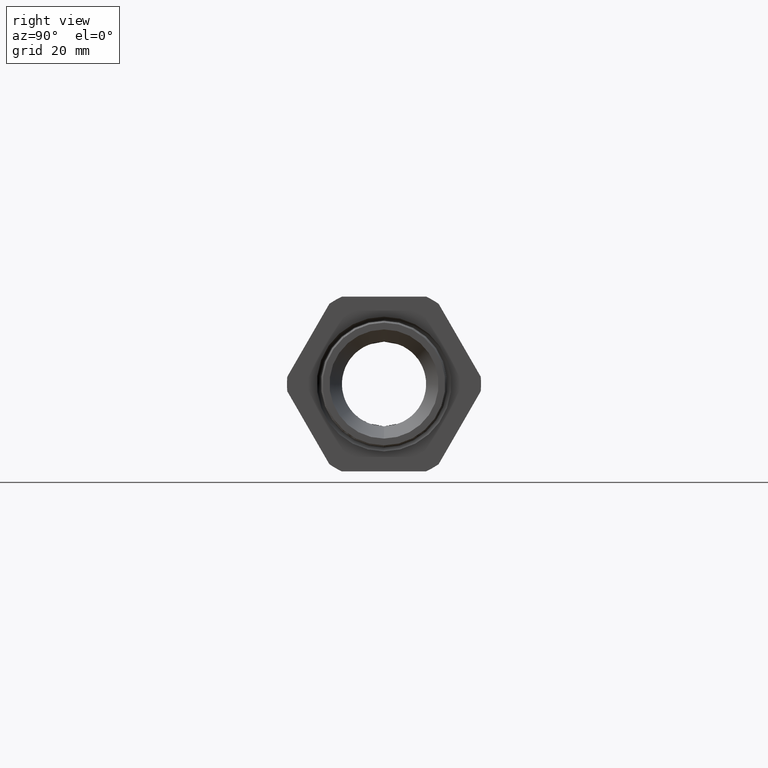
[diagram: clean part render]
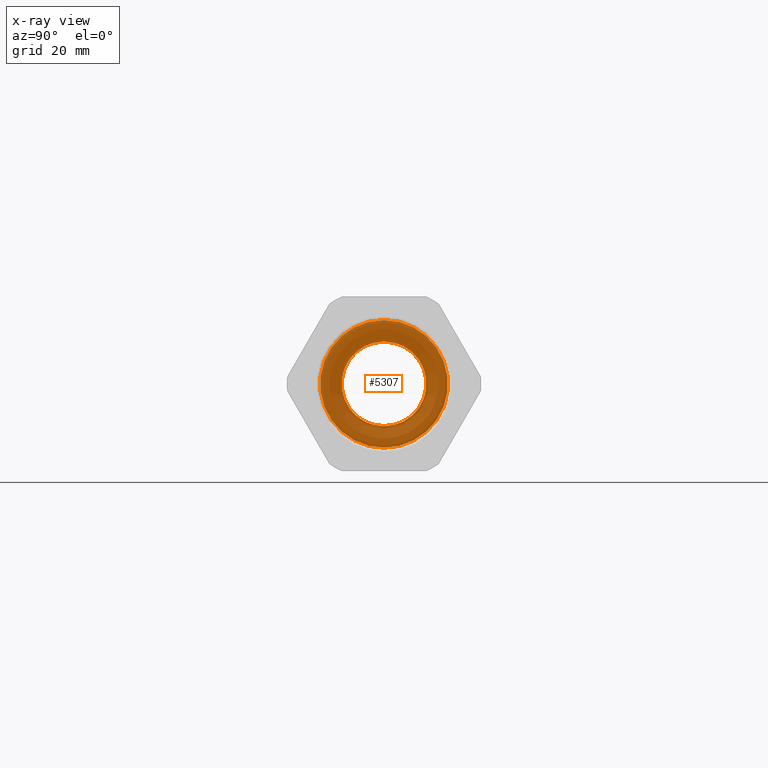
[diagram: x-ray — body ghosted, one internal face saturated and labeled with its STEP entity id]
A machine part, right view, then the same camera in x-ray: the body is ghosted and one INTERNAL B-rep face — a face not visible from any outside direction — is saturated and labeled: STEP entity #5307.
In plain terms, the highlighted planar face has unit normal (1, 0, 0).
Its self-contained STEP definition (entity closure, byte-faithful):
#1501 = DIRECTION ( 'NONE',  ( 0.0000000000000000000, 0.0000000000000000000, -1.000000000000000000 ) ) ;
#1502 = DIRECTION ( 'NONE',  ( 1.000000000000000000, 0.0000000000000000000, 0.0000000000000000000 ) ) ;
#1503 = CARTESIAN_POINT ( 'NONE',  ( -1.370551181102362300, 0.4744999999999999800, 0.0000000000000000000 ) ) ;
#1504 = AXIS2_PLACEMENT_3D ( 'NONE', #1503, #1502, #1501 ) ;
#1505 = PLANE ( 'NONE',  #1504 ) ;
#1506 = FACE_BOUND ( 'NONE', #5310, .T. ) ;
#1507 = FACE_OUTER_BOUND ( 'NONE', #5308, .T. ) ;
#1512 = DIRECTION ( 'NONE',  ( 0.0000000000000000000, 0.0000000000000000000, -1.000000000000000000 ) ) ;
#1513 = DIRECTION ( 'NONE',  ( 1.000000000000000000, 0.0000000000000000000, 0.0000000000000000000 ) ) ;
#1514 = CARTESIAN_POINT ( 'NONE',  ( -1.370551181102362100, 0.0000000000000000000, 0.0000000000000000000 ) ) ;
#1515 = AXIS2_PLACEMENT_3D ( 'NONE', #1514, #1513, #1512 ) ;
#1516 = CIRCLE ( 'NONE', #1515, 0.4744999999999999800 ) ;
#5304 = EDGE_CURVE ( 'NONE', #5615, #5614, #1516, .T. ) ;
#5307 = ADVANCED_FACE ( 'NONE', ( #1507, #1506 ), #1505, .T. ) ;
#5308 = EDGE_LOOP ( 'NONE', ( #5309, #5697 ) ) ;
#5309 = ORIENTED_EDGE ( 'NONE', *, *, #5304, .T. ) ;
#5310 = EDGE_LOOP ( 'NONE', ( #5888, #5890 ) ) ;
#5598 = VERTEX_POINT ( 'NONE', #12733 ) ;
#5614 = VERTEX_POINT ( 'NONE', #12763 ) ;
#5615 = VERTEX_POINT ( 'NONE', #12762 ) ;
#5697 = ORIENTED_EDGE ( 'NONE', *, *, #5887, .T. ) ;
#5741 = VERTEX_POINT ( 'NONE', #12954 ) ;
#5743 = EDGE_CURVE ( 'NONE', #5741, #5598, #12953, .T. ) ;
#5887 = EDGE_CURVE ( 'NONE', #5614, #5615, #13163, .T. ) ;
#5888 = ORIENTED_EDGE ( 'NONE', *, *, #5889, .F. ) ;
#5889 = EDGE_CURVE ( 'NONE', #5598, #5741, #13157, .T. ) ;
#5890 = ORIENTED_EDGE ( 'NONE', *, *, #5743, .F. ) ;
#12733 = CARTESIAN_POINT ( 'NONE',  ( -1.370551181102362500, 0.0000000000000000000, -0.3150000000000000000 ) ) ;
#12762 = CARTESIAN_POINT ( 'NONE',  ( -1.370551181102362100, 0.0000000000000000000, -0.4744999999999999800 ) ) ;
#12763 = CARTESIAN_POINT ( 'NONE',  ( -1.370551181102362100, 5.810949061954191000E-017, 0.4744999999999999800 ) ) ;
#12949 = DIRECTION ( 'NONE',  ( 0.0000000000000000000, 0.0000000000000000000, -1.000000000000000000 ) ) ;
#12950 = DIRECTION ( 'NONE',  ( 1.000000000000000000, 0.0000000000000000000, 0.0000000000000000000 ) ) ;
#12951 = CARTESIAN_POINT ( 'NONE',  ( -1.370551181102362500, 0.0000000000000000000, 0.0000000000000000000 ) ) ;
#12952 = AXIS2_PLACEMENT_3D ( 'NONE', #12951, #12950, #12949 ) ;
#12953 = CIRCLE ( 'NONE', #12952, 0.3150000000000000000 ) ;
#12954 = CARTESIAN_POINT ( 'NONE',  ( -1.370551181102362500, 3.857637417314162700E-017, 0.3150000000000000000 ) ) ;
#13154 = DIRECTION ( 'NONE',  ( 0.0000000000000000000, 0.0000000000000000000, -1.000000000000000000 ) ) ;
#13155 = DIRECTION ( 'NONE',  ( 1.000000000000000000, 0.0000000000000000000, 0.0000000000000000000 ) ) ;
#13156 = AXIS2_PLACEMENT_3D ( 'NONE', #13164, #13155, #13154 ) ;
#13157 = CIRCLE ( 'NONE', #13156, 0.3150000000000000000 ) ;
#13158 = DIRECTION ( 'NONE',  ( 0.0000000000000000000, 0.0000000000000000000, -1.000000000000000000 ) ) ;
#13159 = DIRECTION ( 'NONE',  ( 1.000000000000000000, 0.0000000000000000000, 0.0000000000000000000 ) ) ;
#13161 = CARTESIAN_POINT ( 'NONE',  ( -1.370551181102362100, 0.0000000000000000000, 0.0000000000000000000 ) ) ;
#13162 = AXIS2_PLACEMENT_3D ( 'NONE', #13161, #13159, #13158 ) ;
#13163 = CIRCLE ( 'NONE', #13162, 0.4744999999999999800 ) ;
#13164 = CARTESIAN_POINT ( 'NONE',  ( -1.370551181102362500, 0.0000000000000000000, 0.0000000000000000000 ) ) ;